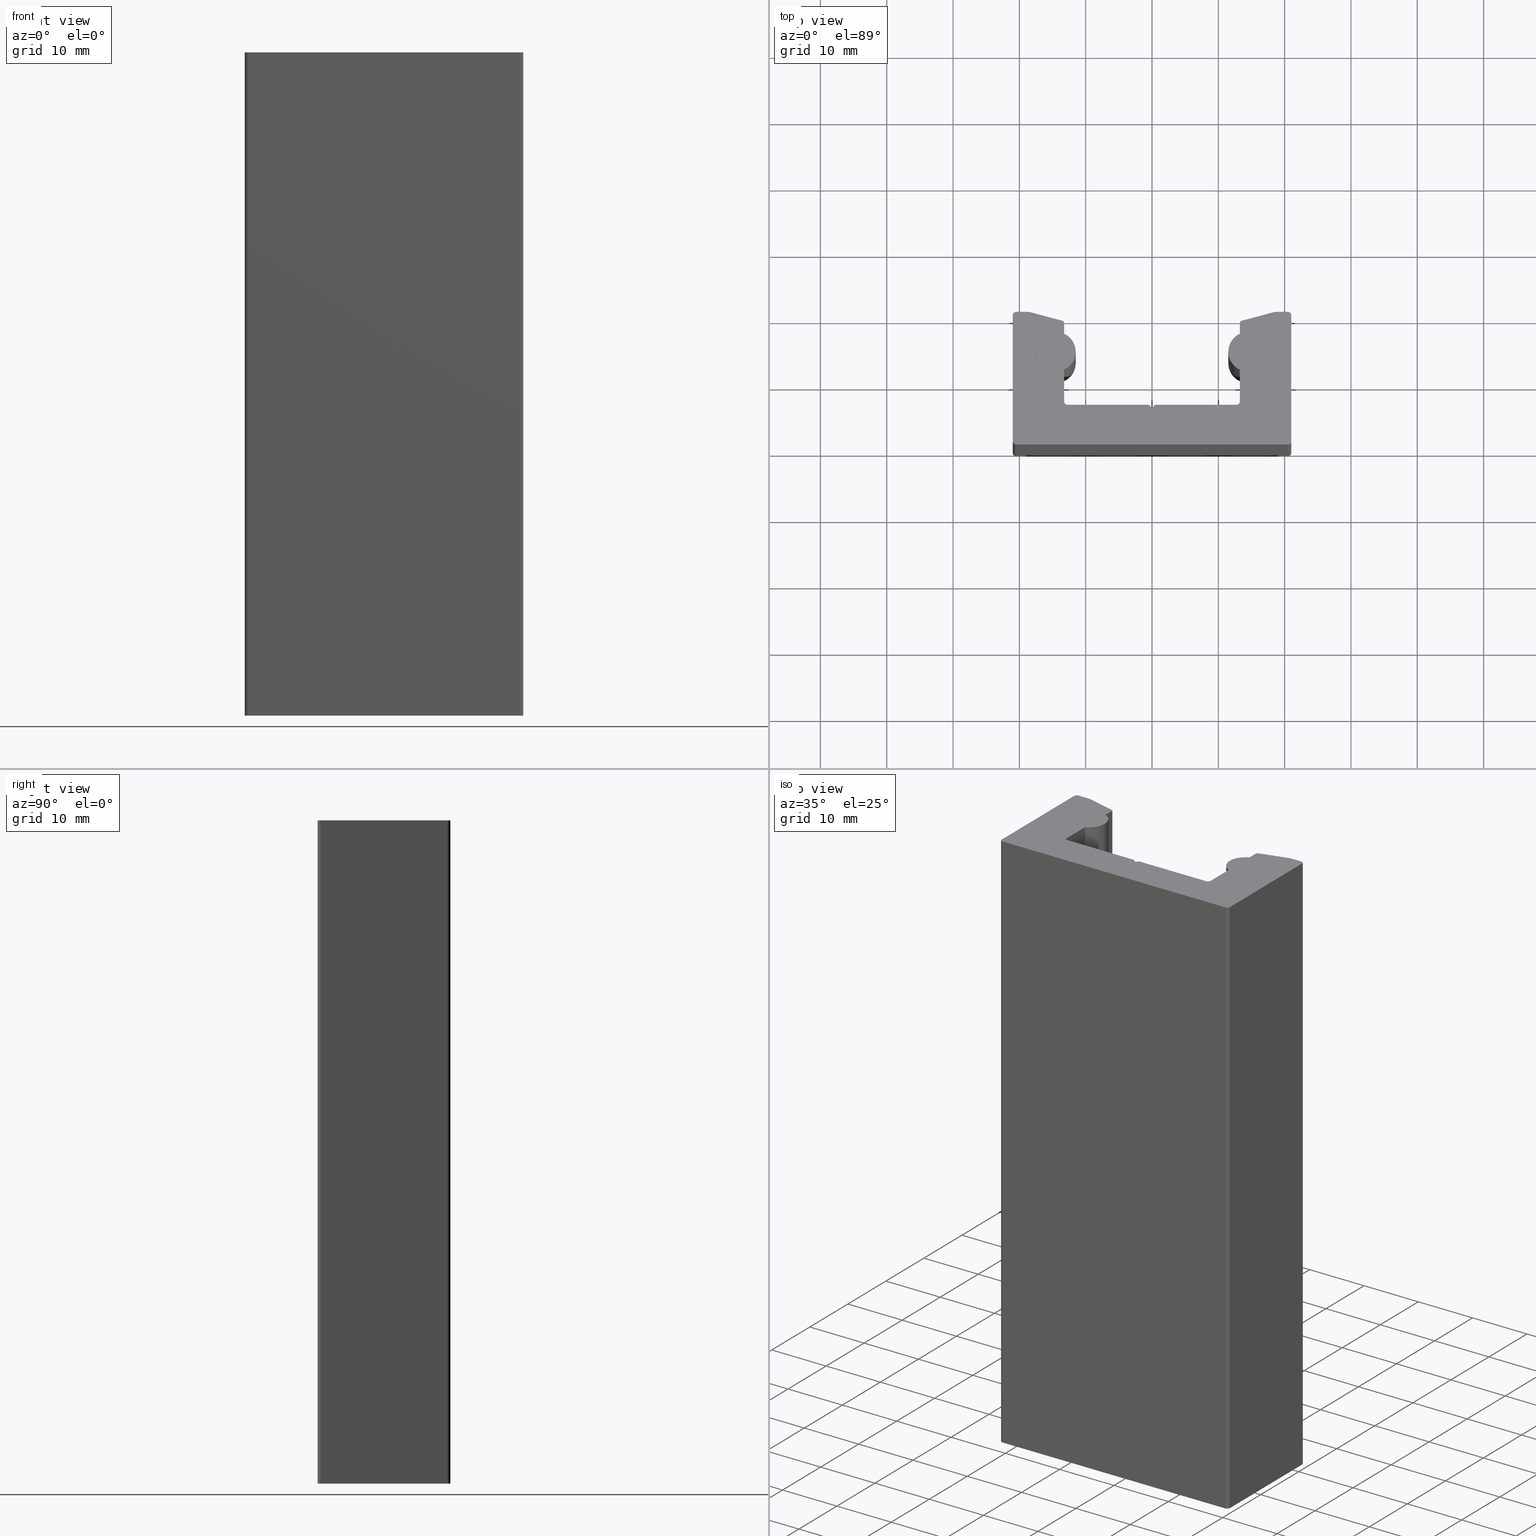
[diagram: canonical four-view strip — front | top / right | iso, engineering-drawing reading convention]
A machine part, canonical four-view strip (front | top / right | iso — engineering-drawing reading convention). The complete STEP part file that produces these views, byte-faithful:
ISO-10303-21;
HEADER;
/* Generated by software containing ST-Developer
 * from STEP Tools, Inc. (www.steptools.com) 
 */

FILE_DESCRIPTION(
/* description */ ('GUIDA LINEARE IL42 COMPLETA DI TONDINO'),
/* implementation_level */ '2;1');

FILE_NAME(
/* name */ 'C:\\Users\\tecnico5\\Desktop\\SITOWEB\\BPRGD0000014.stp',
/* time_stamp */ '2022-07-26T16:31:34+02:00',
/* author */ ('tecnico3.vi'),
/* organization */ (''),
/* preprocessor_version */ 'ST-DEVELOPER v18.1',
/* originating_system */ 'Autodesk Inventor 2022',
/* authorisation */ '');

FILE_SCHEMA (('AUTOMOTIVE_DESIGN { 1 0 10303 214 3 1 1 }'));
ENDSEC;

DATA;
#10=MECHANICAL_DESIGN_GEOMETRIC_PRESENTATION_REPRESENTATION('',(#27,#28),
#1038);
#11=ITEM_DEFINED_TRANSFORMATION($,$,#636,#690);
#12=ITEM_DEFINED_TRANSFORMATION($,$,#684,#691);
#13=ITEM_DEFINED_TRANSFORMATION($,$,#684,#692);
#14=(
REPRESENTATION_RELATIONSHIP($,$,#1053,#1052)
REPRESENTATION_RELATIONSHIP_WITH_TRANSFORMATION(#11)
SHAPE_REPRESENTATION_RELATIONSHIP()
);
#15=(
REPRESENTATION_RELATIONSHIP($,$,#1054,#1052)
REPRESENTATION_RELATIONSHIP_WITH_TRANSFORMATION(#12)
SHAPE_REPRESENTATION_RELATIONSHIP()
);
#16=(
REPRESENTATION_RELATIONSHIP($,$,#1054,#1052)
REPRESENTATION_RELATIONSHIP_WITH_TRANSFORMATION(#13)
SHAPE_REPRESENTATION_RELATIONSHIP()
);
#17=CONTEXT_DEPENDENT_SHAPE_REPRESENTATION(#14,#1049);
#18=CONTEXT_DEPENDENT_SHAPE_REPRESENTATION(#15,#1050);
#19=CONTEXT_DEPENDENT_SHAPE_REPRESENTATION(#16,#1051);
#20=NEXT_ASSEMBLY_USAGE_OCCURRENCE('958510004026:1','958510004026:1',
'958510004026:1',#1056,#1057,'958510004026:1');
#21=NEXT_ASSEMBLY_USAGE_OCCURRENCE('958510004027:1','958510004027:1',
'958510004027:1',#1056,#1058,'958510004027:1');
#22=NEXT_ASSEMBLY_USAGE_OCCURRENCE('958510004027:2','958510004027:2',
'958510004027:2',#1056,#1058,'958510004027:2');
#23=SHAPE_REPRESENTATION_RELATIONSHIP('SRR','None',#1053,#25);
#24=SHAPE_REPRESENTATION_RELATIONSHIP('SRR','None',#1054,#26);
#25=ADVANCED_BREP_SHAPE_REPRESENTATION('',(#29),#1036);
#26=ADVANCED_BREP_SHAPE_REPRESENTATION('',(#30),#1037);
#27=STYLED_ITEM('',(#599),#29);
#28=STYLED_ITEM('',(#600),#30);
#29=MANIFOLD_SOLID_BREP('Solido1',#571);
#30=MANIFOLD_SOLID_BREP('Solido1',#572);
#31=PLANE('',#640);
#32=PLANE('',#641);
#33=PLANE('',#653);
#34=PLANE('',#656);
#35=PLANE('',#659);
#36=PLANE('',#662);
#37=PLANE('',#665);
#38=PLANE('',#668);
#39=PLANE('',#671);
#40=PLANE('',#672);
#41=PLANE('',#673);
#42=PLANE('',#676);
#43=PLANE('',#677);
#44=PLANE('',#678);
#45=PLANE('',#679);
#46=PLANE('',#682);
#47=PLANE('',#683);
#48=PLANE('',#685);
#49=PLANE('',#689);
#50=FACE_OUTER_BOUND('',#80,.T.);
#51=FACE_OUTER_BOUND('',#81,.T.);
#52=FACE_OUTER_BOUND('',#82,.T.);
#53=FACE_OUTER_BOUND('',#83,.T.);
#54=FACE_OUTER_BOUND('',#84,.T.);
#55=FACE_OUTER_BOUND('',#85,.T.);
#56=FACE_OUTER_BOUND('',#86,.T.);
#57=FACE_OUTER_BOUND('',#87,.T.);
#58=FACE_OUTER_BOUND('',#88,.T.);
#59=FACE_OUTER_BOUND('',#89,.T.);
#60=FACE_OUTER_BOUND('',#90,.T.);
#61=FACE_OUTER_BOUND('',#91,.T.);
#62=FACE_OUTER_BOUND('',#92,.T.);
#63=FACE_OUTER_BOUND('',#93,.T.);
#64=FACE_OUTER_BOUND('',#94,.T.);
#65=FACE_OUTER_BOUND('',#95,.T.);
#66=FACE_OUTER_BOUND('',#96,.T.);
#67=FACE_OUTER_BOUND('',#97,.T.);
#68=FACE_OUTER_BOUND('',#98,.T.);
#69=FACE_OUTER_BOUND('',#99,.T.);
#70=FACE_OUTER_BOUND('',#100,.T.);
#71=FACE_OUTER_BOUND('',#101,.T.);
#72=FACE_OUTER_BOUND('',#102,.T.);
#73=FACE_OUTER_BOUND('',#103,.T.);
#74=FACE_OUTER_BOUND('',#104,.T.);
#75=FACE_OUTER_BOUND('',#105,.T.);
#76=FACE_OUTER_BOUND('',#106,.T.);
#77=FACE_OUTER_BOUND('',#107,.T.);
#78=FACE_OUTER_BOUND('',#108,.T.);
#79=FACE_OUTER_BOUND('',#109,.T.);
#80=EDGE_LOOP('',(#374,#375,#376,#377));
#81=EDGE_LOOP('',(#378,#379,#380,#381));
#82=EDGE_LOOP('',(#382,#383,#384,#385,#386,#387,#388,#389,#390,#391,#392,
#393,#394,#395,#396,#397,#398,#399,#400,#401,#402,#403,#404,#405,#406));
#83=EDGE_LOOP('',(#407,#408,#409,#410));
#84=EDGE_LOOP('',(#411,#412,#413,#414));
#85=EDGE_LOOP('',(#415,#416,#417,#418));
#86=EDGE_LOOP('',(#419,#420,#421,#422));
#87=EDGE_LOOP('',(#423,#424,#425,#426));
#88=EDGE_LOOP('',(#427,#428,#429,#430));
#89=EDGE_LOOP('',(#431,#432,#433,#434));
#90=EDGE_LOOP('',(#435,#436,#437,#438));
#91=EDGE_LOOP('',(#439,#440,#441,#442));
#92=EDGE_LOOP('',(#443,#444,#445,#446));
#93=EDGE_LOOP('',(#447,#448,#449,#450));
#94=EDGE_LOOP('',(#451,#452,#453,#454));
#95=EDGE_LOOP('',(#455,#456,#457,#458));
#96=EDGE_LOOP('',(#459,#460,#461,#462));
#97=EDGE_LOOP('',(#463,#464,#465,#466));
#98=EDGE_LOOP('',(#467,#468,#469,#470));
#99=EDGE_LOOP('',(#471,#472,#473,#474));
#100=EDGE_LOOP('',(#475,#476,#477,#478));
#101=EDGE_LOOP('',(#479,#480,#481,#482));
#102=EDGE_LOOP('',(#483,#484,#485,#486));
#103=EDGE_LOOP('',(#487,#488,#489,#490));
#104=EDGE_LOOP('',(#491,#492,#493,#494));
#105=EDGE_LOOP('',(#495,#496,#497,#498));
#106=EDGE_LOOP('',(#499,#500,#501,#502,#503,#504,#505,#506,#507,#508,#509,
#510,#511,#512,#513,#514,#515,#516,#517,#518,#519,#520,#521,#522,#523));
#107=EDGE_LOOP('',(#524));
#108=EDGE_LOOP('',(#525,#526,#527,#528));
#109=EDGE_LOOP('',(#529));
#110=LINE('',#872,#166);
#111=LINE('',#875,#167);
#112=LINE('',#878,#168);
#113=LINE('',#880,#169);
#114=LINE('',#881,#170);
#115=LINE('',#884,#171);
#116=LINE('',#886,#172);
#117=LINE('',#890,#173);
#118=LINE('',#894,#174);
#119=LINE('',#898,#175);
#120=LINE('',#902,#176);
#121=LINE('',#904,#177);
#122=LINE('',#908,#178);
#123=LINE('',#912,#179);
#124=LINE('',#916,#180);
#125=LINE('',#918,#181);
#126=LINE('',#920,#182);
#127=LINE('',#922,#183);
#128=LINE('',#926,#184);
#129=LINE('',#932,#185);
#130=LINE('',#933,#186);
#131=LINE('',#936,#187);
#132=LINE('',#937,#188);
#133=LINE('',#940,#189);
#134=LINE('',#943,#190);
#135=LINE('',#946,#191);
#136=LINE('',#947,#192);
#137=LINE('',#950,#193);
#138=LINE('',#953,#194);
#139=LINE('',#956,#195);
#140=LINE('',#957,#196);
#141=LINE('',#962,#197);
#142=LINE('',#963,#198);
#143=LINE('',#966,#199);
#144=LINE('',#967,#200);
#145=LINE('',#971,#201);
#146=LINE('',#974,#202);
#147=LINE('',#975,#203);
#148=LINE('',#980,#204);
#149=LINE('',#981,#205);
#150=LINE('',#984,#206);
#151=LINE('',#985,#207);
#152=LINE('',#988,#208);
#153=LINE('',#991,#209);
#154=LINE('',#993,#210);
#155=LINE('',#996,#211);
#156=LINE('',#997,#212);
#157=LINE('',#1002,#213);
#158=LINE('',#1003,#214);
#159=LINE('',#1006,#215);
#160=LINE('',#1007,#216);
#161=LINE('',#1009,#217);
#162=LINE('',#1012,#218);
#163=LINE('',#1013,#219);
#164=LINE('',#1017,#220);
#165=LINE('',#1026,#221);
#166=VECTOR('',#701,10.);
#167=VECTOR('',#704,10.);
#168=VECTOR('',#707,10.);
#169=VECTOR('',#708,10.);
#170=VECTOR('',#709,10.);
#171=VECTOR('',#712,10.);
#172=VECTOR('',#713,10.);
#173=VECTOR('',#716,10.);
#174=VECTOR('',#719,10.);
#175=VECTOR('',#722,10.);
#176=VECTOR('',#725,10.);
#177=VECTOR('',#726,10.);
#178=VECTOR('',#729,10.);
#179=VECTOR('',#732,10.);
#180=VECTOR('',#735,10.);
#181=VECTOR('',#736,10.);
#182=VECTOR('',#737,10.);
#183=VECTOR('',#738,10.);
#184=VECTOR('',#741,10.);
#185=VECTOR('',#748,10.);
#186=VECTOR('',#749,10.);
#187=VECTOR('',#752,10.);
#188=VECTOR('',#753,10.);
#189=VECTOR('',#756,10.);
#190=VECTOR('',#759,10.);
#191=VECTOR('',#762,10.);
#192=VECTOR('',#763,10.);
#193=VECTOR('',#766,10.);
#194=VECTOR('',#769,10.);
#195=VECTOR('',#772,10.);
#196=VECTOR('',#773,10.);
#197=VECTOR('',#778,10.);
#198=VECTOR('',#779,10.);
#199=VECTOR('',#782,10.);
#200=VECTOR('',#783,10.);
#201=VECTOR('',#788,10.);
#202=VECTOR('',#791,10.);
#203=VECTOR('',#792,10.);
#204=VECTOR('',#797,10.);
#205=VECTOR('',#798,10.);
#206=VECTOR('',#801,10.);
#207=VECTOR('',#802,10.);
#208=VECTOR('',#805,10.);
#209=VECTOR('',#810,10.);
#210=VECTOR('',#813,10.);
#211=VECTOR('',#816,10.);
#212=VECTOR('',#817,10.);
#213=VECTOR('',#824,10.);
#214=VECTOR('',#825,10.);
#215=VECTOR('',#828,10.);
#216=VECTOR('',#829,10.);
#217=VECTOR('',#832,10.);
#218=VECTOR('',#835,10.);
#219=VECTOR('',#836,10.);
#220=VECTOR('',#843,10.);
#221=VECTOR('',#856,3.);
#222=CIRCLE('',#638,0.3);
#223=CIRCLE('',#639,0.3);
#224=CIRCLE('',#642,0.5);
#225=CIRCLE('',#643,0.5);
#226=CIRCLE('',#644,0.5);
#227=CIRCLE('',#645,0.5);
#228=CIRCLE('',#646,0.3);
#229=CIRCLE('',#647,3.);
#230=CIRCLE('',#648,0.5);
#231=CIRCLE('',#649,0.5);
#232=CIRCLE('',#650,3.);
#233=CIRCLE('',#652,0.3);
#234=CIRCLE('',#655,0.5);
#235=CIRCLE('',#658,0.5);
#236=CIRCLE('',#661,0.5);
#237=CIRCLE('',#664,0.5);
#238=CIRCLE('',#667,0.5);
#239=CIRCLE('',#670,0.5);
#240=CIRCLE('',#675,3.);
#241=CIRCLE('',#681,3.);
#242=CIRCLE('',#686,3.);
#243=CIRCLE('',#688,3.);
#244=VERTEX_POINT('',#868);
#245=VERTEX_POINT('',#869);
#246=VERTEX_POINT('',#871);
#247=VERTEX_POINT('',#873);
#248=VERTEX_POINT('',#877);
#249=VERTEX_POINT('',#879);
#250=VERTEX_POINT('',#883);
#251=VERTEX_POINT('',#885);
#252=VERTEX_POINT('',#887);
#253=VERTEX_POINT('',#889);
#254=VERTEX_POINT('',#891);
#255=VERTEX_POINT('',#893);
#256=VERTEX_POINT('',#895);
#257=VERTEX_POINT('',#897);
#258=VERTEX_POINT('',#899);
#259=VERTEX_POINT('',#901);
#260=VERTEX_POINT('',#903);
#261=VERTEX_POINT('',#905);
#262=VERTEX_POINT('',#907);
#263=VERTEX_POINT('',#909);
#264=VERTEX_POINT('',#911);
#265=VERTEX_POINT('',#913);
#266=VERTEX_POINT('',#915);
#267=VERTEX_POINT('',#917);
#268=VERTEX_POINT('',#919);
#269=VERTEX_POINT('',#921);
#270=VERTEX_POINT('',#923);
#271=VERTEX_POINT('',#925);
#272=VERTEX_POINT('',#929);
#273=VERTEX_POINT('',#930);
#274=VERTEX_POINT('',#935);
#275=VERTEX_POINT('',#939);
#276=VERTEX_POINT('',#941);
#277=VERTEX_POINT('',#945);
#278=VERTEX_POINT('',#949);
#279=VERTEX_POINT('',#951);
#280=VERTEX_POINT('',#955);
#281=VERTEX_POINT('',#959);
#282=VERTEX_POINT('',#960);
#283=VERTEX_POINT('',#965);
#284=VERTEX_POINT('',#969);
#285=VERTEX_POINT('',#973);
#286=VERTEX_POINT('',#977);
#287=VERTEX_POINT('',#978);
#288=VERTEX_POINT('',#983);
#289=VERTEX_POINT('',#987);
#290=VERTEX_POINT('',#995);
#291=VERTEX_POINT('',#1001);
#292=VERTEX_POINT('',#1005);
#293=VERTEX_POINT('',#1011);
#294=VERTEX_POINT('',#1021);
#295=VERTEX_POINT('',#1024);
#296=EDGE_CURVE('',#244,#245,#222,.T.);
#297=EDGE_CURVE('',#245,#246,#110,.T.);
#298=EDGE_CURVE('',#246,#247,#223,.T.);
#299=EDGE_CURVE('',#247,#244,#111,.T.);
#300=EDGE_CURVE('',#247,#248,#112,.T.);
#301=EDGE_CURVE('',#248,#249,#113,.T.);
#302=EDGE_CURVE('',#249,#244,#114,.T.);
#303=EDGE_CURVE('',#250,#246,#115,.T.);
#304=EDGE_CURVE('',#251,#250,#116,.T.);
#305=EDGE_CURVE('',#252,#251,#224,.T.);
#306=EDGE_CURVE('',#253,#252,#117,.T.);
#307=EDGE_CURVE('',#254,#253,#225,.T.);
#308=EDGE_CURVE('',#255,#254,#118,.T.);
#309=EDGE_CURVE('',#256,#255,#226,.T.);
#310=EDGE_CURVE('',#257,#256,#119,.T.);
#311=EDGE_CURVE('',#258,#257,#227,.T.);
#312=EDGE_CURVE('',#259,#258,#120,.T.);
#313=EDGE_CURVE('',#260,#259,#121,.T.);
#314=EDGE_CURVE('',#261,#260,#228,.T.);
#315=EDGE_CURVE('',#262,#261,#122,.T.);
#316=EDGE_CURVE('',#263,#262,#229,.T.);
#317=EDGE_CURVE('',#264,#263,#123,.T.);
#318=EDGE_CURVE('',#265,#264,#230,.T.);
#319=EDGE_CURVE('',#266,#265,#124,.T.);
#320=EDGE_CURVE('',#267,#266,#125,.T.);
#321=EDGE_CURVE('',#268,#267,#126,.T.);
#322=EDGE_CURVE('',#269,#268,#127,.T.);
#323=EDGE_CURVE('',#270,#269,#231,.T.);
#324=EDGE_CURVE('',#271,#270,#128,.T.);
#325=EDGE_CURVE('',#248,#271,#232,.T.);
#326=EDGE_CURVE('',#272,#273,#233,.T.);
#327=EDGE_CURVE('',#273,#261,#129,.T.);
#328=EDGE_CURVE('',#260,#272,#130,.T.);
#329=EDGE_CURVE('',#259,#274,#131,.T.);
#330=EDGE_CURVE('',#274,#272,#132,.T.);
#331=EDGE_CURVE('',#264,#275,#133,.T.);
#332=EDGE_CURVE('',#275,#276,#234,.T.);
#333=EDGE_CURVE('',#276,#265,#134,.T.);
#334=EDGE_CURVE('',#263,#277,#135,.T.);
#335=EDGE_CURVE('',#277,#275,#136,.T.);
#336=EDGE_CURVE('',#269,#278,#137,.T.);
#337=EDGE_CURVE('',#278,#279,#235,.T.);
#338=EDGE_CURVE('',#279,#270,#138,.T.);
#339=EDGE_CURVE('',#268,#280,#139,.T.);
#340=EDGE_CURVE('',#280,#278,#140,.T.);
#341=EDGE_CURVE('',#281,#282,#236,.T.);
#342=EDGE_CURVE('',#282,#254,#141,.T.);
#343=EDGE_CURVE('',#253,#281,#142,.T.);
#344=EDGE_CURVE('',#283,#252,#143,.T.);
#345=EDGE_CURVE('',#283,#281,#144,.T.);
#346=EDGE_CURVE('',#284,#283,#237,.T.);
#347=EDGE_CURVE('',#251,#284,#145,.T.);
#348=EDGE_CURVE('',#250,#285,#146,.T.);
#349=EDGE_CURVE('',#285,#284,#147,.T.);
#350=EDGE_CURVE('',#286,#287,#238,.T.);
#351=EDGE_CURVE('',#287,#258,#148,.T.);
#352=EDGE_CURVE('',#257,#286,#149,.T.);
#353=EDGE_CURVE('',#288,#256,#150,.T.);
#354=EDGE_CURVE('',#288,#286,#151,.T.);
#355=EDGE_CURVE('',#255,#289,#152,.T.);
#356=EDGE_CURVE('',#289,#288,#239,.T.);
#357=EDGE_CURVE('',#282,#289,#153,.T.);
#358=EDGE_CURVE('',#287,#274,#154,.T.);
#359=EDGE_CURVE('',#273,#290,#155,.T.);
#360=EDGE_CURVE('',#262,#290,#156,.T.);
#361=EDGE_CURVE('',#290,#277,#240,.T.);
#362=EDGE_CURVE('',#276,#291,#157,.T.);
#363=EDGE_CURVE('',#266,#291,#158,.T.);
#364=EDGE_CURVE('',#291,#292,#159,.T.);
#365=EDGE_CURVE('',#267,#292,#160,.T.);
#366=EDGE_CURVE('',#292,#280,#161,.T.);
#367=EDGE_CURVE('',#279,#293,#162,.T.);
#368=EDGE_CURVE('',#271,#293,#163,.T.);
#369=EDGE_CURVE('',#293,#249,#241,.T.);
#370=EDGE_CURVE('',#245,#285,#164,.T.);
#371=EDGE_CURVE('',#294,#294,#242,.T.);
#372=EDGE_CURVE('',#295,#295,#243,.T.);
#373=EDGE_CURVE('',#295,#294,#165,.T.);
#374=ORIENTED_EDGE('',*,*,#296,.T.);
#375=ORIENTED_EDGE('',*,*,#297,.T.);
#376=ORIENTED_EDGE('',*,*,#298,.T.);
#377=ORIENTED_EDGE('',*,*,#299,.T.);
#378=ORIENTED_EDGE('',*,*,#299,.F.);
#379=ORIENTED_EDGE('',*,*,#300,.T.);
#380=ORIENTED_EDGE('',*,*,#301,.T.);
#381=ORIENTED_EDGE('',*,*,#302,.T.);
#382=ORIENTED_EDGE('',*,*,#298,.F.);
#383=ORIENTED_EDGE('',*,*,#303,.F.);
#384=ORIENTED_EDGE('',*,*,#304,.F.);
#385=ORIENTED_EDGE('',*,*,#305,.F.);
#386=ORIENTED_EDGE('',*,*,#306,.F.);
#387=ORIENTED_EDGE('',*,*,#307,.F.);
#388=ORIENTED_EDGE('',*,*,#308,.F.);
#389=ORIENTED_EDGE('',*,*,#309,.F.);
#390=ORIENTED_EDGE('',*,*,#310,.F.);
#391=ORIENTED_EDGE('',*,*,#311,.F.);
#392=ORIENTED_EDGE('',*,*,#312,.F.);
#393=ORIENTED_EDGE('',*,*,#313,.F.);
#394=ORIENTED_EDGE('',*,*,#314,.F.);
#395=ORIENTED_EDGE('',*,*,#315,.F.);
#396=ORIENTED_EDGE('',*,*,#316,.F.);
#397=ORIENTED_EDGE('',*,*,#317,.F.);
#398=ORIENTED_EDGE('',*,*,#318,.F.);
#399=ORIENTED_EDGE('',*,*,#319,.F.);
#400=ORIENTED_EDGE('',*,*,#320,.F.);
#401=ORIENTED_EDGE('',*,*,#321,.F.);
#402=ORIENTED_EDGE('',*,*,#322,.F.);
#403=ORIENTED_EDGE('',*,*,#323,.F.);
#404=ORIENTED_EDGE('',*,*,#324,.F.);
#405=ORIENTED_EDGE('',*,*,#325,.F.);
#406=ORIENTED_EDGE('',*,*,#300,.F.);
#407=ORIENTED_EDGE('',*,*,#326,.T.);
#408=ORIENTED_EDGE('',*,*,#327,.T.);
#409=ORIENTED_EDGE('',*,*,#314,.T.);
#410=ORIENTED_EDGE('',*,*,#328,.T.);
#411=ORIENTED_EDGE('',*,*,#328,.F.);
#412=ORIENTED_EDGE('',*,*,#313,.T.);
#413=ORIENTED_EDGE('',*,*,#329,.T.);
#414=ORIENTED_EDGE('',*,*,#330,.T.);
#415=ORIENTED_EDGE('',*,*,#318,.T.);
#416=ORIENTED_EDGE('',*,*,#331,.T.);
#417=ORIENTED_EDGE('',*,*,#332,.T.);
#418=ORIENTED_EDGE('',*,*,#333,.T.);
#419=ORIENTED_EDGE('',*,*,#331,.F.);
#420=ORIENTED_EDGE('',*,*,#317,.T.);
#421=ORIENTED_EDGE('',*,*,#334,.T.);
#422=ORIENTED_EDGE('',*,*,#335,.T.);
#423=ORIENTED_EDGE('',*,*,#323,.T.);
#424=ORIENTED_EDGE('',*,*,#336,.T.);
#425=ORIENTED_EDGE('',*,*,#337,.T.);
#426=ORIENTED_EDGE('',*,*,#338,.T.);
#427=ORIENTED_EDGE('',*,*,#336,.F.);
#428=ORIENTED_EDGE('',*,*,#322,.T.);
#429=ORIENTED_EDGE('',*,*,#339,.T.);
#430=ORIENTED_EDGE('',*,*,#340,.T.);
#431=ORIENTED_EDGE('',*,*,#341,.T.);
#432=ORIENTED_EDGE('',*,*,#342,.T.);
#433=ORIENTED_EDGE('',*,*,#307,.T.);
#434=ORIENTED_EDGE('',*,*,#343,.T.);
#435=ORIENTED_EDGE('',*,*,#343,.F.);
#436=ORIENTED_EDGE('',*,*,#306,.T.);
#437=ORIENTED_EDGE('',*,*,#344,.F.);
#438=ORIENTED_EDGE('',*,*,#345,.T.);
#439=ORIENTED_EDGE('',*,*,#346,.T.);
#440=ORIENTED_EDGE('',*,*,#344,.T.);
#441=ORIENTED_EDGE('',*,*,#305,.T.);
#442=ORIENTED_EDGE('',*,*,#347,.T.);
#443=ORIENTED_EDGE('',*,*,#347,.F.);
#444=ORIENTED_EDGE('',*,*,#304,.T.);
#445=ORIENTED_EDGE('',*,*,#348,.T.);
#446=ORIENTED_EDGE('',*,*,#349,.T.);
#447=ORIENTED_EDGE('',*,*,#350,.T.);
#448=ORIENTED_EDGE('',*,*,#351,.T.);
#449=ORIENTED_EDGE('',*,*,#311,.T.);
#450=ORIENTED_EDGE('',*,*,#352,.T.);
#451=ORIENTED_EDGE('',*,*,#352,.F.);
#452=ORIENTED_EDGE('',*,*,#310,.T.);
#453=ORIENTED_EDGE('',*,*,#353,.F.);
#454=ORIENTED_EDGE('',*,*,#354,.T.);
#455=ORIENTED_EDGE('',*,*,#309,.T.);
#456=ORIENTED_EDGE('',*,*,#355,.T.);
#457=ORIENTED_EDGE('',*,*,#356,.T.);
#458=ORIENTED_EDGE('',*,*,#353,.T.);
#459=ORIENTED_EDGE('',*,*,#342,.F.);
#460=ORIENTED_EDGE('',*,*,#357,.T.);
#461=ORIENTED_EDGE('',*,*,#355,.F.);
#462=ORIENTED_EDGE('',*,*,#308,.T.);
#463=ORIENTED_EDGE('',*,*,#351,.F.);
#464=ORIENTED_EDGE('',*,*,#358,.T.);
#465=ORIENTED_EDGE('',*,*,#329,.F.);
#466=ORIENTED_EDGE('',*,*,#312,.T.);
#467=ORIENTED_EDGE('',*,*,#327,.F.);
#468=ORIENTED_EDGE('',*,*,#359,.T.);
#469=ORIENTED_EDGE('',*,*,#360,.F.);
#470=ORIENTED_EDGE('',*,*,#315,.T.);
#471=ORIENTED_EDGE('',*,*,#361,.T.);
#472=ORIENTED_EDGE('',*,*,#334,.F.);
#473=ORIENTED_EDGE('',*,*,#316,.T.);
#474=ORIENTED_EDGE('',*,*,#360,.T.);
#475=ORIENTED_EDGE('',*,*,#333,.F.);
#476=ORIENTED_EDGE('',*,*,#362,.T.);
#477=ORIENTED_EDGE('',*,*,#363,.F.);
#478=ORIENTED_EDGE('',*,*,#319,.T.);
#479=ORIENTED_EDGE('',*,*,#364,.T.);
#480=ORIENTED_EDGE('',*,*,#365,.F.);
#481=ORIENTED_EDGE('',*,*,#320,.T.);
#482=ORIENTED_EDGE('',*,*,#363,.T.);
#483=ORIENTED_EDGE('',*,*,#366,.T.);
#484=ORIENTED_EDGE('',*,*,#339,.F.);
#485=ORIENTED_EDGE('',*,*,#321,.T.);
#486=ORIENTED_EDGE('',*,*,#365,.T.);
#487=ORIENTED_EDGE('',*,*,#338,.F.);
#488=ORIENTED_EDGE('',*,*,#367,.T.);
#489=ORIENTED_EDGE('',*,*,#368,.F.);
#490=ORIENTED_EDGE('',*,*,#324,.T.);
#491=ORIENTED_EDGE('',*,*,#369,.T.);
#492=ORIENTED_EDGE('',*,*,#301,.F.);
#493=ORIENTED_EDGE('',*,*,#325,.T.);
#494=ORIENTED_EDGE('',*,*,#368,.T.);
#495=ORIENTED_EDGE('',*,*,#297,.F.);
#496=ORIENTED_EDGE('',*,*,#370,.T.);
#497=ORIENTED_EDGE('',*,*,#348,.F.);
#498=ORIENTED_EDGE('',*,*,#303,.T.);
#499=ORIENTED_EDGE('',*,*,#296,.F.);
#500=ORIENTED_EDGE('',*,*,#302,.F.);
#501=ORIENTED_EDGE('',*,*,#369,.F.);
#502=ORIENTED_EDGE('',*,*,#367,.F.);
#503=ORIENTED_EDGE('',*,*,#337,.F.);
#504=ORIENTED_EDGE('',*,*,#340,.F.);
#505=ORIENTED_EDGE('',*,*,#366,.F.);
#506=ORIENTED_EDGE('',*,*,#364,.F.);
#507=ORIENTED_EDGE('',*,*,#362,.F.);
#508=ORIENTED_EDGE('',*,*,#332,.F.);
#509=ORIENTED_EDGE('',*,*,#335,.F.);
#510=ORIENTED_EDGE('',*,*,#361,.F.);
#511=ORIENTED_EDGE('',*,*,#359,.F.);
#512=ORIENTED_EDGE('',*,*,#326,.F.);
#513=ORIENTED_EDGE('',*,*,#330,.F.);
#514=ORIENTED_EDGE('',*,*,#358,.F.);
#515=ORIENTED_EDGE('',*,*,#350,.F.);
#516=ORIENTED_EDGE('',*,*,#354,.F.);
#517=ORIENTED_EDGE('',*,*,#356,.F.);
#518=ORIENTED_EDGE('',*,*,#357,.F.);
#519=ORIENTED_EDGE('',*,*,#341,.F.);
#520=ORIENTED_EDGE('',*,*,#345,.F.);
#521=ORIENTED_EDGE('',*,*,#346,.F.);
#522=ORIENTED_EDGE('',*,*,#349,.F.);
#523=ORIENTED_EDGE('',*,*,#370,.F.);
#524=ORIENTED_EDGE('',*,*,#371,.F.);
#525=ORIENTED_EDGE('',*,*,#372,.T.);
#526=ORIENTED_EDGE('',*,*,#373,.T.);
#527=ORIENTED_EDGE('',*,*,#371,.T.);
#528=ORIENTED_EDGE('',*,*,#373,.F.);
#529=ORIENTED_EDGE('',*,*,#372,.F.);
#530=CYLINDRICAL_SURFACE('',#637,0.3);
#531=CYLINDRICAL_SURFACE('',#651,0.3);
#532=CYLINDRICAL_SURFACE('',#654,0.5);
#533=CYLINDRICAL_SURFACE('',#657,0.5);
#534=CYLINDRICAL_SURFACE('',#660,0.5);
#535=CYLINDRICAL_SURFACE('',#663,0.5);
#536=CYLINDRICAL_SURFACE('',#666,0.5);
#537=CYLINDRICAL_SURFACE('',#669,0.5);
#538=CYLINDRICAL_SURFACE('',#674,3.);
#539=CYLINDRICAL_SURFACE('',#680,3.);
#540=CYLINDRICAL_SURFACE('',#687,3.);
#541=ADVANCED_FACE('',(#50),#530,.T.);
#542=ADVANCED_FACE('',(#51),#31,.T.);
#543=ADVANCED_FACE('',(#52),#32,.F.);
#544=ADVANCED_FACE('',(#53),#531,.T.);
#545=ADVANCED_FACE('',(#54),#33,.T.);
#546=ADVANCED_FACE('',(#55),#532,.F.);
#547=ADVANCED_FACE('',(#56),#34,.T.);
#548=ADVANCED_FACE('',(#57),#533,.F.);
#549=ADVANCED_FACE('',(#58),#35,.T.);
#550=ADVANCED_FACE('',(#59),#534,.T.);
#551=ADVANCED_FACE('',(#60),#36,.T.);
#552=ADVANCED_FACE('',(#61),#535,.T.);
#553=ADVANCED_FACE('',(#62),#37,.T.);
#554=ADVANCED_FACE('',(#63),#536,.T.);
#555=ADVANCED_FACE('',(#64),#38,.T.);
#556=ADVANCED_FACE('',(#65),#537,.T.);
#557=ADVANCED_FACE('',(#66),#39,.T.);
#558=ADVANCED_FACE('',(#67),#40,.T.);
#559=ADVANCED_FACE('',(#68),#41,.T.);
#560=ADVANCED_FACE('',(#69),#538,.F.);
#561=ADVANCED_FACE('',(#70),#42,.T.);
#562=ADVANCED_FACE('',(#71),#43,.T.);
#563=ADVANCED_FACE('',(#72),#44,.T.);
#564=ADVANCED_FACE('',(#73),#45,.T.);
#565=ADVANCED_FACE('',(#74),#539,.F.);
#566=ADVANCED_FACE('',(#75),#46,.T.);
#567=ADVANCED_FACE('',(#76),#47,.T.);
#568=ADVANCED_FACE('',(#77),#48,.T.);
#569=ADVANCED_FACE('',(#78),#540,.T.);
#570=ADVANCED_FACE('',(#79),#49,.F.);
#571=CLOSED_SHELL('',(#541,#542,#543,#544,#545,#546,#547,#548,#549,#550,
#551,#552,#553,#554,#555,#556,#557,#558,#559,#560,#561,#562,#563,#564,#565,
#566,#567));
#572=CLOSED_SHELL('',(#568,#569,#570));
#573=DERIVED_UNIT_ELEMENT(#578,1.);
#574=DERIVED_UNIT_ELEMENT(#1040,-3.);
#575=DERIVED_UNIT_ELEMENT(#578,1.);
#576=DERIVED_UNIT_ELEMENT(#1040,-3.);
#577=DIMENSIONAL_EXPONENTS(1.,0.,0.,0.,0.,0.,0.);
#578=(
CONVERSION_BASED_UNIT('gram',#580)
MASS_UNIT()
NAMED_UNIT(#577)
);
#579=(
MASS_UNIT()
NAMED_UNIT(*)
SI_UNIT(.KILO.,.GRAM.)
);
#580=MASS_MEASURE_WITH_UNIT(MASS_MEASURE(0.001),#579);
#581=DERIVED_UNIT((#573,#574));
#582=DERIVED_UNIT((#575,#576));
#583=MEASURE_REPRESENTATION_ITEM('density measure',
POSITIVE_RATIO_MEASURE(2.71),#581);
#584=MEASURE_REPRESENTATION_ITEM('density measure',
POSITIVE_RATIO_MEASURE(7.85),#582);
#585=PROPERTY_DEFINITION_REPRESENTATION(#595,#589);
#586=PROPERTY_DEFINITION_REPRESENTATION(#596,#590);
#587=PROPERTY_DEFINITION_REPRESENTATION(#597,#591);
#588=PROPERTY_DEFINITION_REPRESENTATION(#598,#592);
#589=REPRESENTATION('material name',(#593),#1036);
#590=REPRESENTATION('density',(#583),#1036);
#591=REPRESENTATION('material name',(#594),#1037);
#592=REPRESENTATION('density',(#584),#1037);
#593=DESCRIPTIVE_REPRESENTATION_ITEM('Alluminio - 6061',
'Alluminio - 6061');
#594=DESCRIPTIVE_REPRESENTATION_ITEM('Acciaio','Acciaio');
#595=PROPERTY_DEFINITION('material property','material name',#1057);
#596=PROPERTY_DEFINITION('material property','density of part',#1057);
#597=PROPERTY_DEFINITION('material property','material name',#1058);
#598=PROPERTY_DEFINITION('material property','density of part',#1058);
#599=PRESENTATION_STYLE_ASSIGNMENT((#601));
#600=PRESENTATION_STYLE_ASSIGNMENT((#602));
#601=SURFACE_STYLE_USAGE(.BOTH.,#607);
#602=SURFACE_STYLE_USAGE(.BOTH.,#608);
#603=SURFACE_STYLE_RENDERING_WITH_PROPERTIES($,#615,(#605));
#604=SURFACE_STYLE_RENDERING_WITH_PROPERTIES($,#616,(#606));
#605=SURFACE_STYLE_TRANSPARENT(0.);
#606=SURFACE_STYLE_TRANSPARENT(0.);
#607=SURFACE_SIDE_STYLE('',(#609,#603));
#608=SURFACE_SIDE_STYLE('',(#610,#604));
#609=SURFACE_STYLE_FILL_AREA(#611);
#610=SURFACE_STYLE_FILL_AREA(#612);
#611=FILL_AREA_STYLE('',(#613));
#612=FILL_AREA_STYLE('',(#614));
#613=FILL_AREA_STYLE_COLOUR('',#615);
#614=FILL_AREA_STYLE_COLOUR('',#616);
#615=COLOUR_RGB('',0.898039215686275,0.898039215686275,0.898039215686275);
#616=COLOUR_RGB('',0.956862745098039,0.956862745098039,0.956862745098039);
#617=DATE_TIME_ROLE('creation_date');
#618=DATE_TIME_ROLE('creation_date');
#619=DATE_TIME_ROLE('creation_date');
#620=APPLIED_DATE_AND_TIME_ASSIGNMENT(#623,#617,(#1056));
#621=APPLIED_DATE_AND_TIME_ASSIGNMENT(#624,#618,(#1057));
#622=APPLIED_DATE_AND_TIME_ASSIGNMENT(#625,#619,(#1058));
#623=DATE_AND_TIME(#626,#629);
#624=DATE_AND_TIME(#627,#630);
#625=DATE_AND_TIME(#628,#631);
#626=CALENDAR_DATE(2013,6,6);
#627=CALENDAR_DATE(2015,23,2);
#628=CALENDAR_DATE(2015,23,2);
#629=LOCAL_TIME(0,0,0.,#632);
#630=LOCAL_TIME(0,0,0.,#633);
#631=LOCAL_TIME(0,0,0.,#634);
#632=COORDINATED_UNIVERSAL_TIME_OFFSET(0,0,.BEHIND.);
#633=COORDINATED_UNIVERSAL_TIME_OFFSET(0,0,.BEHIND.);
#634=COORDINATED_UNIVERSAL_TIME_OFFSET(0,0,.BEHIND.);
#635=AXIS2_PLACEMENT_3D('placement',#865,#693,#694);
#636=AXIS2_PLACEMENT_3D('placement',#866,#695,#696);
#637=AXIS2_PLACEMENT_3D('',#867,#697,#698);
#638=AXIS2_PLACEMENT_3D('',#870,#699,#700);
#639=AXIS2_PLACEMENT_3D('',#874,#702,#703);
#640=AXIS2_PLACEMENT_3D('',#876,#705,#706);
#641=AXIS2_PLACEMENT_3D('',#882,#710,#711);
#642=AXIS2_PLACEMENT_3D('',#888,#714,#715);
#643=AXIS2_PLACEMENT_3D('',#892,#717,#718);
#644=AXIS2_PLACEMENT_3D('',#896,#720,#721);
#645=AXIS2_PLACEMENT_3D('',#900,#723,#724);
#646=AXIS2_PLACEMENT_3D('',#906,#727,#728);
#647=AXIS2_PLACEMENT_3D('',#910,#730,#731);
#648=AXIS2_PLACEMENT_3D('',#914,#733,#734);
#649=AXIS2_PLACEMENT_3D('',#924,#739,#740);
#650=AXIS2_PLACEMENT_3D('',#927,#742,#743);
#651=AXIS2_PLACEMENT_3D('',#928,#744,#745);
#652=AXIS2_PLACEMENT_3D('',#931,#746,#747);
#653=AXIS2_PLACEMENT_3D('',#934,#750,#751);
#654=AXIS2_PLACEMENT_3D('',#938,#754,#755);
#655=AXIS2_PLACEMENT_3D('',#942,#757,#758);
#656=AXIS2_PLACEMENT_3D('',#944,#760,#761);
#657=AXIS2_PLACEMENT_3D('',#948,#764,#765);
#658=AXIS2_PLACEMENT_3D('',#952,#767,#768);
#659=AXIS2_PLACEMENT_3D('',#954,#770,#771);
#660=AXIS2_PLACEMENT_3D('',#958,#774,#775);
#661=AXIS2_PLACEMENT_3D('',#961,#776,#777);
#662=AXIS2_PLACEMENT_3D('',#964,#780,#781);
#663=AXIS2_PLACEMENT_3D('',#968,#784,#785);
#664=AXIS2_PLACEMENT_3D('',#970,#786,#787);
#665=AXIS2_PLACEMENT_3D('',#972,#789,#790);
#666=AXIS2_PLACEMENT_3D('',#976,#793,#794);
#667=AXIS2_PLACEMENT_3D('',#979,#795,#796);
#668=AXIS2_PLACEMENT_3D('',#982,#799,#800);
#669=AXIS2_PLACEMENT_3D('',#986,#803,#804);
#670=AXIS2_PLACEMENT_3D('',#989,#806,#807);
#671=AXIS2_PLACEMENT_3D('',#990,#808,#809);
#672=AXIS2_PLACEMENT_3D('',#992,#811,#812);
#673=AXIS2_PLACEMENT_3D('',#994,#814,#815);
#674=AXIS2_PLACEMENT_3D('',#998,#818,#819);
#675=AXIS2_PLACEMENT_3D('',#999,#820,#821);
#676=AXIS2_PLACEMENT_3D('',#1000,#822,#823);
#677=AXIS2_PLACEMENT_3D('',#1004,#826,#827);
#678=AXIS2_PLACEMENT_3D('',#1008,#830,#831);
#679=AXIS2_PLACEMENT_3D('',#1010,#833,#834);
#680=AXIS2_PLACEMENT_3D('',#1014,#837,#838);
#681=AXIS2_PLACEMENT_3D('',#1015,#839,#840);
#682=AXIS2_PLACEMENT_3D('',#1016,#841,#842);
#683=AXIS2_PLACEMENT_3D('',#1018,#844,#845);
#684=AXIS2_PLACEMENT_3D('placement',#1019,#846,#847);
#685=AXIS2_PLACEMENT_3D('',#1020,#848,#849);
#686=AXIS2_PLACEMENT_3D('',#1022,#850,#851);
#687=AXIS2_PLACEMENT_3D('',#1023,#852,#853);
#688=AXIS2_PLACEMENT_3D('',#1025,#854,#855);
#689=AXIS2_PLACEMENT_3D('',#1027,#857,#858);
#690=AXIS2_PLACEMENT_3D('',#1028,#859,#860);
#691=AXIS2_PLACEMENT_3D('',#1029,#861,#862);
#692=AXIS2_PLACEMENT_3D('',#1030,#863,#864);
#693=DIRECTION('axis',(0.,0.,1.));
#694=DIRECTION('refdir',(1.,0.,0.));
#695=DIRECTION('axis',(0.,0.,1.));
#696=DIRECTION('refdir',(1.,0.,0.));
#697=DIRECTION('center_axis',(0.,0.,1.));
#698=DIRECTION('ref_axis',(-0.793353340291234,0.608761429008722,0.));
#699=DIRECTION('center_axis',(0.,0.,-1.));
#700=DIRECTION('ref_axis',(-0.793353340291234,0.608761429008722,0.));
#701=DIRECTION('',(0.,0.,-1.));
#702=DIRECTION('center_axis',(0.,0.,1.));
#703=DIRECTION('ref_axis',(-0.793353340291234,0.608761429008722,0.));
#704=DIRECTION('',(0.,0.,1.));
#705=DIRECTION('center_axis',(-1.,0.,0.));
#706=DIRECTION('ref_axis',(0.,0.,1.));
#707=DIRECTION('',(0.,-1.,0.));
#708=DIRECTION('',(0.,0.,1.));
#709=DIRECTION('',(0.,1.,0.));
#710=DIRECTION('center_axis',(0.,0.,1.));
#711=DIRECTION('ref_axis',(1.,0.,0.));
#712=DIRECTION('',(-0.965925826289068,-0.258819045102521,0.));
#713=DIRECTION('',(-1.,0.,0.));
#714=DIRECTION('center_axis',(0.,0.,1.));
#715=DIRECTION('ref_axis',(0.707106781186544,0.707106781186551,0.));
#716=DIRECTION('',(-2.22044604925031E-16,1.,0.));
#717=DIRECTION('center_axis',(0.,0.,1.));
#718=DIRECTION('ref_axis',(0.707106781186547,-0.707106781186548,0.));
#719=DIRECTION('',(1.,0.,0.));
#720=DIRECTION('center_axis',(0.,0.,1.));
#721=DIRECTION('ref_axis',(-0.707106781186546,-0.707106781186549,0.));
#722=DIRECTION('',(-2.22044604925031E-16,-1.,0.));
#723=DIRECTION('center_axis',(0.,0.,1.));
#724=DIRECTION('ref_axis',(-0.707106781186544,0.707106781186551,0.));
#725=DIRECTION('',(-1.,0.,0.));
#726=DIRECTION('',(-0.965925826289068,0.258819045102521,0.));
#727=DIRECTION('center_axis',(0.,0.,1.));
#728=DIRECTION('ref_axis',(0.793353340291234,0.608761429008722,0.));
#729=DIRECTION('',(-3.56967924847688E-15,1.,0.));
#730=DIRECTION('center_axis',(0.,0.,-1.));
#731=DIRECTION('ref_axis',(-0.416666666666666,-0.90905934288631,0.));
#732=DIRECTION('',(2.52666909065269E-15,1.,0.));
#733=DIRECTION('center_axis',(0.,0.,-1.));
#734=DIRECTION('ref_axis',(-0.707106781186548,-0.707106781186548,0.));
#735=DIRECTION('',(-1.,-1.7415263131375E-16,0.));
#736=DIRECTION('',(-0.707106781186546,0.707106781186549,0.));
#737=DIRECTION('',(-0.707106781186547,-0.707106781186548,0.));
#738=DIRECTION('',(-1.,-1.7415263131375E-16,0.));
#739=DIRECTION('center_axis',(0.,0.,-1.));
#740=DIRECTION('ref_axis',(0.707106781186546,-0.707106781186549,0.));
#741=DIRECTION('',(4.21111515108782E-16,-1.,0.));
#742=DIRECTION('center_axis',(0.,0.,-1.));
#743=DIRECTION('ref_axis',(0.416666666666668,0.909059342886309,0.));
#744=DIRECTION('center_axis',(0.,0.,1.));
#745=DIRECTION('ref_axis',(0.793353340291234,0.608761429008722,0.));
#746=DIRECTION('center_axis',(0.,0.,-1.));
#747=DIRECTION('ref_axis',(0.793353340291234,0.608761429008722,0.));
#748=DIRECTION('',(0.,0.,-1.));
#749=DIRECTION('',(0.,0.,1.));
#750=DIRECTION('center_axis',(0.258819045102521,0.965925826289068,0.));
#751=DIRECTION('ref_axis',(0.,0.,1.));
#752=DIRECTION('',(0.,0.,1.));
#753=DIRECTION('',(0.965925826289068,-0.258819045102521,0.));
#754=DIRECTION('center_axis',(0.,0.,1.));
#755=DIRECTION('ref_axis',(-0.707106781186548,-0.707106781186548,0.));
#756=DIRECTION('',(0.,0.,1.));
#757=DIRECTION('center_axis',(0.,0.,1.));
#758=DIRECTION('ref_axis',(-0.707106781186548,-0.707106781186548,0.));
#759=DIRECTION('',(0.,0.,-1.));
#760=DIRECTION('center_axis',(1.,-2.52666909065269E-15,0.));
#761=DIRECTION('ref_axis',(0.,0.,-1.));
#762=DIRECTION('',(0.,0.,1.));
#763=DIRECTION('',(-2.52666909065269E-15,-1.,0.));
#764=DIRECTION('center_axis',(0.,0.,1.));
#765=DIRECTION('ref_axis',(0.707106781186546,-0.707106781186549,0.));
#766=DIRECTION('',(0.,0.,1.));
#767=DIRECTION('center_axis',(0.,0.,1.));
#768=DIRECTION('ref_axis',(0.707106781186546,-0.707106781186549,0.));
#769=DIRECTION('',(0.,0.,-1.));
#770=DIRECTION('center_axis',(-1.7415263131375E-16,1.,0.));
#771=DIRECTION('ref_axis',(0.,0.,1.));
#772=DIRECTION('',(0.,0.,1.));
#773=DIRECTION('',(1.,1.7415263131375E-16,0.));
#774=DIRECTION('center_axis',(0.,0.,1.));
#775=DIRECTION('ref_axis',(0.707106781186547,-0.707106781186548,0.));
#776=DIRECTION('center_axis',(0.,0.,-1.));
#777=DIRECTION('ref_axis',(0.707106781186547,-0.707106781186548,0.));
#778=DIRECTION('',(0.,0.,-1.));
#779=DIRECTION('',(0.,0.,1.));
#780=DIRECTION('center_axis',(1.,2.22044604925031E-16,0.));
#781=DIRECTION('ref_axis',(0.,0.,-1.));
#782=DIRECTION('',(0.,0.,-1.));
#783=DIRECTION('',(2.22044604925031E-16,-1.,0.));
#784=DIRECTION('center_axis',(0.,0.,1.));
#785=DIRECTION('ref_axis',(0.707106781186544,0.707106781186551,0.));
#786=DIRECTION('center_axis',(0.,0.,-1.));
#787=DIRECTION('ref_axis',(0.707106781186544,0.707106781186551,0.));
#788=DIRECTION('',(0.,0.,1.));
#789=DIRECTION('center_axis',(0.,1.,0.));
#790=DIRECTION('ref_axis',(0.,0.,1.));
#791=DIRECTION('',(0.,0.,1.));
#792=DIRECTION('',(1.,0.,0.));
#793=DIRECTION('center_axis',(0.,0.,1.));
#794=DIRECTION('ref_axis',(-0.707106781186544,0.707106781186551,0.));
#795=DIRECTION('center_axis',(0.,0.,-1.));
#796=DIRECTION('ref_axis',(-0.707106781186544,0.707106781186551,0.));
#797=DIRECTION('',(0.,0.,-1.));
#798=DIRECTION('',(0.,0.,1.));
#799=DIRECTION('center_axis',(-1.,2.22044604925031E-16,0.));
#800=DIRECTION('ref_axis',(0.,0.,1.));
#801=DIRECTION('',(0.,0.,-1.));
#802=DIRECTION('',(2.22044604925031E-16,1.,0.));
#803=DIRECTION('center_axis',(0.,0.,-1.));
#804=DIRECTION('ref_axis',(-0.707106781186546,-0.707106781186549,0.));
#805=DIRECTION('',(0.,0.,1.));
#806=DIRECTION('center_axis',(0.,0.,-1.));
#807=DIRECTION('ref_axis',(-0.707106781186546,-0.707106781186549,0.));
#808=DIRECTION('center_axis',(0.,-1.,0.));
#809=DIRECTION('ref_axis',(0.,0.,-1.));
#810=DIRECTION('',(-1.,0.,0.));
#811=DIRECTION('center_axis',(0.,1.,0.));
#812=DIRECTION('ref_axis',(0.,0.,1.));
#813=DIRECTION('',(1.,0.,0.));
#814=DIRECTION('center_axis',(1.,3.56967924847688E-15,0.));
#815=DIRECTION('ref_axis',(0.,0.,-1.));
#816=DIRECTION('',(3.56967924847688E-15,-1.,0.));
#817=DIRECTION('',(0.,0.,1.));
#818=DIRECTION('center_axis',(0.,0.,1.));
#819=DIRECTION('ref_axis',(-0.416666666666666,-0.90905934288631,0.));
#820=DIRECTION('center_axis',(0.,0.,1.));
#821=DIRECTION('ref_axis',(-0.416666666666666,-0.90905934288631,0.));
#822=DIRECTION('center_axis',(-1.7415263131375E-16,1.,0.));
#823=DIRECTION('ref_axis',(0.,0.,1.));
#824=DIRECTION('',(1.,1.7415263131375E-16,0.));
#825=DIRECTION('',(0.,0.,1.));
#826=DIRECTION('center_axis',(0.707106781186549,0.707106781186546,0.));
#827=DIRECTION('ref_axis',(0.,0.,-1.));
#828=DIRECTION('',(0.707106781186546,-0.707106781186549,0.));
#829=DIRECTION('',(0.,0.,1.));
#830=DIRECTION('center_axis',(-0.707106781186548,0.707106781186547,0.));
#831=DIRECTION('ref_axis',(0.,0.,1.));
#832=DIRECTION('',(0.707106781186547,0.707106781186548,0.));
#833=DIRECTION('center_axis',(-1.,-4.21111515108782E-16,0.));
#834=DIRECTION('ref_axis',(0.,0.,1.));
#835=DIRECTION('',(-4.21111515108782E-16,1.,0.));
#836=DIRECTION('',(0.,0.,1.));
#837=DIRECTION('center_axis',(0.,0.,1.));
#838=DIRECTION('ref_axis',(0.416666666666668,0.909059342886309,0.));
#839=DIRECTION('center_axis',(0.,0.,1.));
#840=DIRECTION('ref_axis',(0.416666666666668,0.909059342886309,0.));
#841=DIRECTION('center_axis',(-0.258819045102521,0.965925826289068,0.));
#842=DIRECTION('ref_axis',(0.,0.,1.));
#843=DIRECTION('',(0.965925826289068,0.258819045102521,0.));
#844=DIRECTION('center_axis',(0.,0.,1.));
#845=DIRECTION('ref_axis',(1.,0.,0.));
#846=DIRECTION('axis',(0.,0.,1.));
#847=DIRECTION('refdir',(1.,0.,0.));
#848=DIRECTION('center_axis',(0.,0.,-1.));
#849=DIRECTION('ref_axis',(-1.,0.,0.));
#850=DIRECTION('center_axis',(0.,0.,1.));
#851=DIRECTION('ref_axis',(-1.,0.,0.));
#852=DIRECTION('center_axis',(0.,0.,1.));
#853=DIRECTION('ref_axis',(-1.,0.,0.));
#854=DIRECTION('center_axis',(0.,0.,-1.));
#855=DIRECTION('ref_axis',(-1.,0.,0.));
#856=DIRECTION('',(0.,0.,-1.));
#857=DIRECTION('center_axis',(0.,0.,-1.));
#858=DIRECTION('ref_axis',(-1.,0.,0.));
#859=DIRECTION('',(0.,0.,1.));
#860=DIRECTION('',(1.,0.,0.));
#861=DIRECTION('',(0.,0.,1.));
#862=DIRECTION('',(1.,0.,0.));
#863=DIRECTION('',(0.,0.,1.));
#864=DIRECTION('',(1.,0.,0.));
#865=CARTESIAN_POINT('',(0.,0.,0.));
#866=CARTESIAN_POINT('',(0.,0.,0.));
#867=CARTESIAN_POINT('Origin',(13.55,18.3630686433429,0.));
#868=CARTESIAN_POINT('',(13.25,18.3630686433429,50.));
#869=CARTESIAN_POINT('',(13.4723542864692,18.6528463912296,50.));
#870=CARTESIAN_POINT('Origin',(13.55,18.3630686433429,50.));
#871=CARTESIAN_POINT('',(13.4723542864692,18.6528463912296,-50.));
#872=CARTESIAN_POINT('',(13.4723542864692,18.6528463912296,0.));
#873=CARTESIAN_POINT('',(13.25,18.3630686433429,-50.));
#874=CARTESIAN_POINT('Origin',(13.55,18.3630686433429,-50.));
#875=CARTESIAN_POINT('',(13.25,18.3630686433429,0.));
#876=CARTESIAN_POINT('Origin',(13.25,16.7271780286589,0.));
#877=CARTESIAN_POINT('',(13.25,16.7271780286589,-50.));
#878=CARTESIAN_POINT('',(13.25,18.5932667397366,-50.));
#879=CARTESIAN_POINT('',(13.25,16.7271780286589,50.));
#880=CARTESIAN_POINT('',(13.25,16.7271780286589,0.));
#881=CARTESIAN_POINT('',(13.25,18.5932667397366,50.));
#882=CARTESIAN_POINT('Origin',(-5.55111512312578E-16,8.36440419672055,-50.));
#883=CARTESIAN_POINT('',(18.5,20.,-50.));
#884=CARTESIAN_POINT('',(18.5,20.,-50.));
#885=CARTESIAN_POINT('',(20.5,20.,-50.));
#886=CARTESIAN_POINT('',(21.,20.,-50.));
#887=CARTESIAN_POINT('',(21.,19.5,-50.));
#888=CARTESIAN_POINT('Origin',(20.5,19.5,-50.));
#889=CARTESIAN_POINT('',(21.,0.499999999999999,-50.));
#890=CARTESIAN_POINT('',(21.,0.,-50.));
#891=CARTESIAN_POINT('',(20.5,0.,-50.));
#892=CARTESIAN_POINT('Origin',(20.5,0.499999999999999,-50.));
#893=CARTESIAN_POINT('',(-20.5,0.,-50.));
#894=CARTESIAN_POINT('',(-21.,0.,-50.));
#895=CARTESIAN_POINT('',(-21.,0.5,-50.));
#896=CARTESIAN_POINT('Origin',(-20.5,0.5,-50.));
#897=CARTESIAN_POINT('',(-21.,19.5,-50.));
#898=CARTESIAN_POINT('',(-21.,20.,-50.));
#899=CARTESIAN_POINT('',(-20.5,20.,-50.));
#900=CARTESIAN_POINT('Origin',(-20.5,19.5,-50.));
#901=CARTESIAN_POINT('',(-18.5,20.,-50.));
#902=CARTESIAN_POINT('',(-18.5,20.,-50.));
#903=CARTESIAN_POINT('',(-13.4723542864693,18.6528463912296,-50.));
#904=CARTESIAN_POINT('',(-13.25,18.5932667397366,-50.));
#905=CARTESIAN_POINT('',(-13.25,18.3630686433429,-50.));
#906=CARTESIAN_POINT('Origin',(-13.55,18.3630686433429,-50.));
#907=CARTESIAN_POINT('',(-13.25,16.7271780286589,-50.));
#908=CARTESIAN_POINT('',(-13.25,16.7271780286589,-50.));
#909=CARTESIAN_POINT('',(-13.25,11.2728219713411,-50.));
#910=CARTESIAN_POINT('Origin',(-14.5,14.,-50.));
#911=CARTESIAN_POINT('',(-13.25,6.5,-50.));
#912=CARTESIAN_POINT('',(-13.25,6.,-50.));
#913=CARTESIAN_POINT('',(-12.75,6.,-50.));
#914=CARTESIAN_POINT('Origin',(-12.75,6.5,-50.));
#915=CARTESIAN_POINT('',(-0.5,6.,-50.));
#916=CARTESIAN_POINT('',(-0.5,6.,-50.));
#917=CARTESIAN_POINT('',(0.,5.5,-50.));
#918=CARTESIAN_POINT('',(0.,5.5,-50.));
#919=CARTESIAN_POINT('',(0.5,6.,-50.));
#920=CARTESIAN_POINT('',(0.5,6.,-50.));
#921=CARTESIAN_POINT('',(12.75,6.,-50.));
#922=CARTESIAN_POINT('',(13.25,6.,-50.));
#923=CARTESIAN_POINT('',(13.25,6.5,-50.));
#924=CARTESIAN_POINT('Origin',(12.75,6.5,-50.));
#925=CARTESIAN_POINT('',(13.25,11.2728219713411,-50.));
#926=CARTESIAN_POINT('',(13.25,11.2728219713411,-50.));
#927=CARTESIAN_POINT('Origin',(14.5,14.,-50.));
#928=CARTESIAN_POINT('Origin',(-13.55,18.3630686433429,0.));
#929=CARTESIAN_POINT('',(-13.4723542864693,18.6528463912296,50.));
#930=CARTESIAN_POINT('',(-13.25,18.3630686433429,50.));
#931=CARTESIAN_POINT('Origin',(-13.55,18.3630686433429,50.));
#932=CARTESIAN_POINT('',(-13.25,18.3630686433429,0.));
#933=CARTESIAN_POINT('',(-13.4723542864693,18.6528463912296,0.));
#934=CARTESIAN_POINT('Origin',(-18.5,20.,0.));
#935=CARTESIAN_POINT('',(-18.5,20.,50.));
#936=CARTESIAN_POINT('',(-18.5,20.,0.));
#937=CARTESIAN_POINT('',(-13.25,18.5932667397366,50.));
#938=CARTESIAN_POINT('Origin',(-12.75,6.5,0.));
#939=CARTESIAN_POINT('',(-13.25,6.5,50.));
#940=CARTESIAN_POINT('',(-13.25,6.5,0.));
#941=CARTESIAN_POINT('',(-12.75,6.,50.));
#942=CARTESIAN_POINT('Origin',(-12.75,6.5,50.));
#943=CARTESIAN_POINT('',(-12.75,6.,0.));
#944=CARTESIAN_POINT('Origin',(-13.25,11.2728219713411,0.));
#945=CARTESIAN_POINT('',(-13.25,11.2728219713411,50.));
#946=CARTESIAN_POINT('',(-13.25,11.2728219713411,0.));
#947=CARTESIAN_POINT('',(-13.25,6.,50.));
#948=CARTESIAN_POINT('Origin',(12.75,6.5,0.));
#949=CARTESIAN_POINT('',(12.75,6.,50.));
#950=CARTESIAN_POINT('',(12.75,6.,0.));
#951=CARTESIAN_POINT('',(13.25,6.5,50.));
#952=CARTESIAN_POINT('Origin',(12.75,6.5,50.));
#953=CARTESIAN_POINT('',(13.25,6.5,0.));
#954=CARTESIAN_POINT('Origin',(0.5,6.,0.));
#955=CARTESIAN_POINT('',(0.5,6.,50.));
#956=CARTESIAN_POINT('',(0.5,6.,0.));
#957=CARTESIAN_POINT('',(13.25,6.,50.));
#958=CARTESIAN_POINT('Origin',(20.5,0.499999999999999,0.));
#959=CARTESIAN_POINT('',(21.,0.499999999999999,50.));
#960=CARTESIAN_POINT('',(20.5,0.,50.));
#961=CARTESIAN_POINT('Origin',(20.5,0.499999999999999,50.));
#962=CARTESIAN_POINT('',(20.5,0.,0.));
#963=CARTESIAN_POINT('',(21.,0.499999999999999,0.));
#964=CARTESIAN_POINT('Origin',(21.,20.,0.));
#965=CARTESIAN_POINT('',(21.,19.5,50.));
#966=CARTESIAN_POINT('',(21.,19.5,0.));
#967=CARTESIAN_POINT('',(21.,0.,50.));
#968=CARTESIAN_POINT('Origin',(20.5,19.5,0.));
#969=CARTESIAN_POINT('',(20.5,20.,50.));
#970=CARTESIAN_POINT('Origin',(20.5,19.5,50.));
#971=CARTESIAN_POINT('',(20.5,20.,0.));
#972=CARTESIAN_POINT('Origin',(18.5,20.,0.));
#973=CARTESIAN_POINT('',(18.5,20.,50.));
#974=CARTESIAN_POINT('',(18.5,20.,0.));
#975=CARTESIAN_POINT('',(21.,20.,50.));
#976=CARTESIAN_POINT('Origin',(-20.5,19.5,0.));
#977=CARTESIAN_POINT('',(-21.,19.5,50.));
#978=CARTESIAN_POINT('',(-20.5,20.,50.));
#979=CARTESIAN_POINT('Origin',(-20.5,19.5,50.));
#980=CARTESIAN_POINT('',(-20.5,20.,0.));
#981=CARTESIAN_POINT('',(-21.,19.5,0.));
#982=CARTESIAN_POINT('Origin',(-21.,0.,0.));
#983=CARTESIAN_POINT('',(-21.,0.5,50.));
#984=CARTESIAN_POINT('',(-21.,0.5,0.));
#985=CARTESIAN_POINT('',(-21.,20.,50.));
#986=CARTESIAN_POINT('Origin',(-20.5,0.5,0.));
#987=CARTESIAN_POINT('',(-20.5,0.,50.));
#988=CARTESIAN_POINT('',(-20.5,0.,0.));
#989=CARTESIAN_POINT('Origin',(-20.5,0.5,50.));
#990=CARTESIAN_POINT('Origin',(21.,0.,0.));
#991=CARTESIAN_POINT('',(-21.,0.,50.));
#992=CARTESIAN_POINT('Origin',(-21.,20.,0.));
#993=CARTESIAN_POINT('',(-18.5,20.,50.));
#994=CARTESIAN_POINT('Origin',(-13.25,18.5932667397366,0.));
#995=CARTESIAN_POINT('',(-13.25,16.7271780286589,50.));
#996=CARTESIAN_POINT('',(-13.25,16.7271780286589,50.));
#997=CARTESIAN_POINT('',(-13.25,16.7271780286589,0.));
#998=CARTESIAN_POINT('Origin',(-14.5,14.,0.));
#999=CARTESIAN_POINT('Origin',(-14.5,14.,50.));
#1000=CARTESIAN_POINT('Origin',(-13.25,6.,0.));
#1001=CARTESIAN_POINT('',(-0.5,6.,50.));
#1002=CARTESIAN_POINT('',(-0.5,6.,50.));
#1003=CARTESIAN_POINT('',(-0.5,6.,0.));
#1004=CARTESIAN_POINT('Origin',(-0.5,6.,0.));
#1005=CARTESIAN_POINT('',(0.,5.5,50.));
#1006=CARTESIAN_POINT('',(0.,5.5,50.));
#1007=CARTESIAN_POINT('',(0.,5.5,0.));
#1008=CARTESIAN_POINT('Origin',(0.,5.5,0.));
#1009=CARTESIAN_POINT('',(0.5,6.,50.));
#1010=CARTESIAN_POINT('Origin',(13.25,6.,0.));
#1011=CARTESIAN_POINT('',(13.25,11.2728219713411,50.));
#1012=CARTESIAN_POINT('',(13.25,11.2728219713411,50.));
#1013=CARTESIAN_POINT('',(13.25,11.2728219713411,0.));
#1014=CARTESIAN_POINT('Origin',(14.5,14.,0.));
#1015=CARTESIAN_POINT('Origin',(14.5,14.,50.));
#1016=CARTESIAN_POINT('Origin',(13.25,18.5932667397366,0.));
#1017=CARTESIAN_POINT('',(18.5,20.,50.));
#1018=CARTESIAN_POINT('Origin',(-1.66533453693773E-15,8.36440419672055,
50.));
#1019=CARTESIAN_POINT('',(0.,0.,0.));
#1020=CARTESIAN_POINT('Origin',(0.,0.,-50.));
#1021=CARTESIAN_POINT('',(3.,3.67394039744206E-16,-50.));
#1022=CARTESIAN_POINT('Origin',(0.,0.,-50.));
#1023=CARTESIAN_POINT('Origin',(0.,0.,0.));
#1024=CARTESIAN_POINT('',(3.,3.67394039744206E-16,50.));
#1025=CARTESIAN_POINT('Origin',(0.,0.,50.));
#1026=CARTESIAN_POINT('',(3.,3.67394039744206E-16,0.));
#1027=CARTESIAN_POINT('Origin',(0.,0.,50.));
#1028=CARTESIAN_POINT('',(0.,0.,0.));
#1029=CARTESIAN_POINT('',(-14.5,14.,0.));
#1030=CARTESIAN_POINT('',(14.5,14.,0.));
#1031=UNCERTAINTY_MEASURE_WITH_UNIT(LENGTH_MEASURE(0.01),#1039,
'DISTANCE_ACCURACY_VALUE',
'Maximum model space distance between geometric entities at asserted c
onnectivities');
#1032=UNCERTAINTY_MEASURE_WITH_UNIT(LENGTH_MEASURE(0.01),#1039,
'DISTANCE_ACCURACY_VALUE',
'Maximum model space distance between geometric entities at asserted c
onnectivities');
#1033=UNCERTAINTY_MEASURE_WITH_UNIT(LENGTH_MEASURE(0.01),#1039,
'DISTANCE_ACCURACY_VALUE',
'Maximum model space distance between geometric entities at asserted c
onnectivities');
#1034=UNCERTAINTY_MEASURE_WITH_UNIT(LENGTH_MEASURE(0.01),#1039,
'DISTANCE_ACCURACY_VALUE',
'Maximum model space distance between geometric entities at asserted c
onnectivities');
#1035=(
GEOMETRIC_REPRESENTATION_CONTEXT(3)
GLOBAL_UNCERTAINTY_ASSIGNED_CONTEXT((#1031))
GLOBAL_UNIT_ASSIGNED_CONTEXT((#1039,#1041,#1042))
REPRESENTATION_CONTEXT('','3D')
);
#1036=(
GEOMETRIC_REPRESENTATION_CONTEXT(3)
GLOBAL_UNCERTAINTY_ASSIGNED_CONTEXT((#1032))
GLOBAL_UNIT_ASSIGNED_CONTEXT((#1039,#1041,#1042))
REPRESENTATION_CONTEXT('','3D')
);
#1037=(
GEOMETRIC_REPRESENTATION_CONTEXT(3)
GLOBAL_UNCERTAINTY_ASSIGNED_CONTEXT((#1033))
GLOBAL_UNIT_ASSIGNED_CONTEXT((#1039,#1041,#1042))
REPRESENTATION_CONTEXT('','3D')
);
#1038=(
GEOMETRIC_REPRESENTATION_CONTEXT(3)
GLOBAL_UNCERTAINTY_ASSIGNED_CONTEXT((#1034))
GLOBAL_UNIT_ASSIGNED_CONTEXT((#1039,#1041,#1042))
REPRESENTATION_CONTEXT('','3D')
);
#1039=(
LENGTH_UNIT()
NAMED_UNIT(*)
SI_UNIT(.MILLI.,.METRE.)
);
#1040=(
LENGTH_UNIT()
NAMED_UNIT(*)
SI_UNIT(.CENTI.,.METRE.)
);
#1041=(
NAMED_UNIT(*)
PLANE_ANGLE_UNIT()
SI_UNIT($,.RADIAN.)
);
#1042=(
NAMED_UNIT(*)
SI_UNIT($,.STERADIAN.)
SOLID_ANGLE_UNIT()
);
#1043=SHAPE_DEFINITION_REPRESENTATION(#1046,#1052);
#1044=SHAPE_DEFINITION_REPRESENTATION(#1047,#1053);
#1045=SHAPE_DEFINITION_REPRESENTATION(#1048,#1054);
#1046=PRODUCT_DEFINITION_SHAPE('',$,#1056);
#1047=PRODUCT_DEFINITION_SHAPE('',$,#1057);
#1048=PRODUCT_DEFINITION_SHAPE('',$,#1058);
#1049=PRODUCT_DEFINITION_SHAPE($,$,#20);
#1050=PRODUCT_DEFINITION_SHAPE($,$,#21);
#1051=PRODUCT_DEFINITION_SHAPE($,$,#22);
#1052=SHAPE_REPRESENTATION('',(#635,#690,#691,#692),#1035);
#1053=SHAPE_REPRESENTATION('',(#636),#1036);
#1054=SHAPE_REPRESENTATION('',(#684),#1037);
#1055=PRODUCT_DEFINITION_CONTEXT('part definition',#1066,'design');
#1056=PRODUCT_DEFINITION('01.IL42.00','01.IL42.00',#1059,#1055);
#1057=PRODUCT_DEFINITION('958510004026','958510004026',#1060,#1055);
#1058=PRODUCT_DEFINITION('958510004027','958510004027',#1061,#1055);
#1059=PRODUCT_DEFINITION_FORMATION('A',$,#1068);
#1060=PRODUCT_DEFINITION_FORMATION('A',$,#1069);
#1061=PRODUCT_DEFINITION_FORMATION('A',$,#1070);
#1062=PRODUCT_RELATED_PRODUCT_CATEGORY('01.IL42.00','01.IL42.00',(#1068));
#1063=PRODUCT_RELATED_PRODUCT_CATEGORY('958510004026','958510004026',(#1069));
#1064=PRODUCT_RELATED_PRODUCT_CATEGORY('958510004027','958510004027',(#1070));
#1065=APPLICATION_PROTOCOL_DEFINITION('international standard',
'automotive_design',2009,#1066);
#1066=APPLICATION_CONTEXT(
'Core Data for Automotive Mechanical Design Process');
#1067=PRODUCT_CONTEXT('part definition',#1066,'mechanical');
#1068=PRODUCT('01.IL42.00','01.IL42.00',
'GUIDA LINEARE IL42 COMPLETA DI TONDINO',(#1067));
#1069=PRODUCT('958510004026','958510004026','111',(#1067));
#1070=PRODUCT('958510004027','958510004027','111',(#1067));
ENDSEC;
END-ISO-10303-21;
